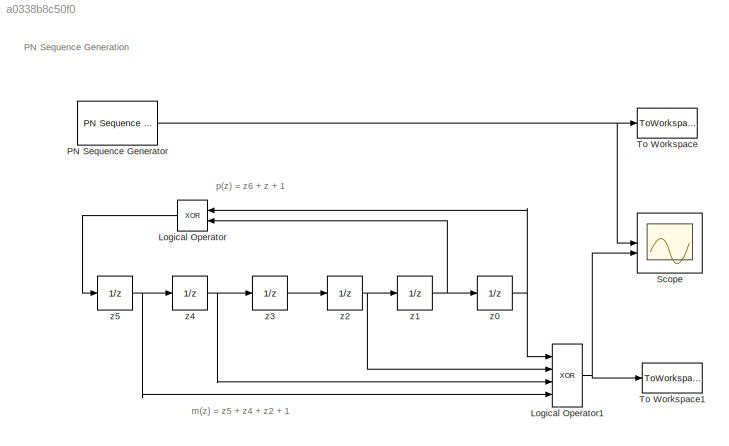
MODEL slx_a0338b8c50f0
KIND model
CONFIG AbsTol = auto
CONFIG EnableMultiTasking = off
CONFIG FixedStep = auto
CONFIG MaxStep = auto
CONFIG MinStep = auto
CONFIG PreLoadFcn = iniStates = [ 0 0 1 0 1 1];\n
CONFIG RelTol = 1e-3
CONFIG SampleTimeConstraint = Unconstrained
CONFIG SolverName = FixedStepDiscrete
CONFIG StartTime = 0.0
CONFIG StopTime = 62
BLOCK [Logic] Logical Operator
  AllPortsSameDT = off
  Operator = XOR
  OutDataTypeStr = boolean
BLOCK [Logic] Logical Operator1
  AllPortsSameDT = off
  Inputs = 4
  Operator = XOR
  OutDataTypeStr = boolean
BLOCK [Reference] PN Sequence Generator  REF=commseqgen3/PN Sequence
Generator
  SourceBlock = commseqgen3/PN Sequence\nGenerator
  SourceType = PN Sequence Generator
BLOCK [Scope] Scope
  Floating = off
  NumInputPorts = 2
  ScopeSpecificationString = Simulink.scopes.TimeScopeBlockCfg('CurrentConfiguration', extmgr.ConfigurationSet(extmgr.Configuration('Core','General UI',true),extmgr.Configuration('Core','Source UI',true),extmgr.Configuration('Sources','WiredSimulink',true,'DataLoggingSaveFormat','StructureWithTime','DataLoggingLimitDataPoints',true,'DataLoggingDecimation','1'),extmgr.Configuration('Visuals','Time Domain',true,'SerializedDispl...<+2332ch>
BLOCK [ToWorkspace] To Workspace
  MaxDataPoints = inf
  SampleTime = -1
  Save2DSignal = 2-D array (concatenate along first dimension)
  VariableName = pn
BLOCK [ToWorkspace] To Workspace1
  MaxDataPoints = inf
  SampleTime = -1
  Save2DSignal = 2-D array (concatenate along first dimension)
  VariableName = pn_sl
BLOCK [UnitDelay] z0
  HasFrameUpgradeWarning = on
  InitialCondition = iniStates(6)
  SampleTime = -1
BLOCK [UnitDelay] z1
  HasFrameUpgradeWarning = on
  InitialCondition = iniStates(5)
  SampleTime = -1
BLOCK [UnitDelay] z2
  HasFrameUpgradeWarning = on
  InitialCondition = iniStates(4)
  SampleTime = -1
BLOCK [UnitDelay] z3
  HasFrameUpgradeWarning = on
  InitialCondition = iniStates(3)
  SampleTime = -1
BLOCK [UnitDelay] z4
  HasFrameUpgradeWarning = on
  InitialCondition = iniStates(2)
  SampleTime = -1
BLOCK [UnitDelay] z5
  HasFrameUpgradeWarning = on
  InitialCondition = iniStates(1)
  SampleTime = -1
ANNOTATION (root): PN Sequence Generation
ANNOTATION (root): m(z) = z5 + z4 + z2 + 1
ANNOTATION (root): p(z) = z6 + z + 1
NET Logical Operator1:1 -> Scope:2, To Workspace1:1
LINE Logical Operator:1 -> z5:1
NET PN Sequence Generator:1 -> Scope:1, To Workspace:1
NET z0:1 -> Logical Operator1:1, Logical Operator:1
NET z1:1 -> Logical Operator:2, z0:1
NET z2:1 -> Logical Operator1:2, z1:1
LINE z3:1 -> z2:1
NET z4:1 -> Logical Operator1:3, z3:1
NET z5:1 -> Logical Operator1:4, z4:1
note: NET lines group one-source signal fan-out (src -> all destinations, sorted); 1:1 wires keep LINE
